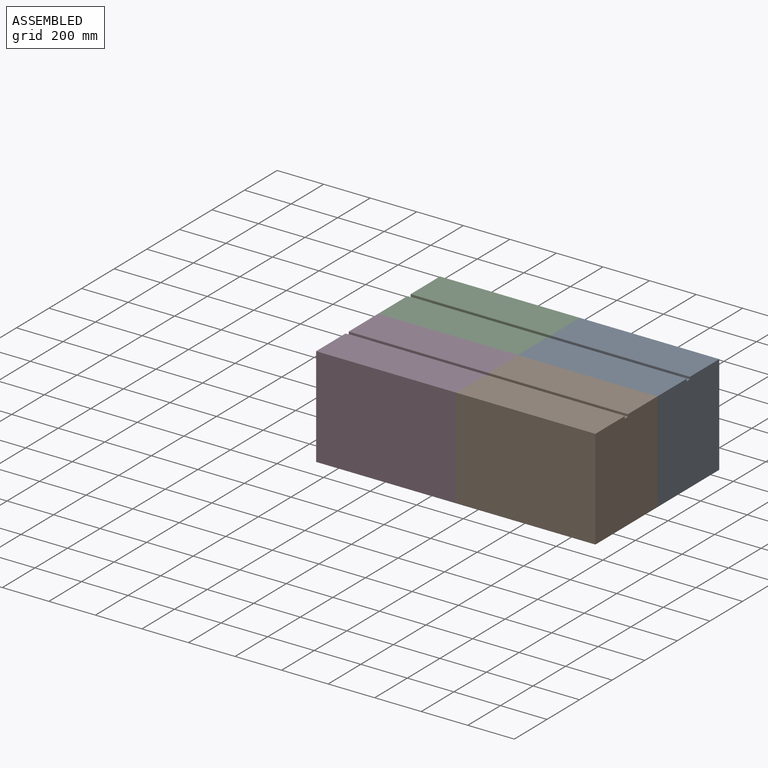
[diagram: assembled view]
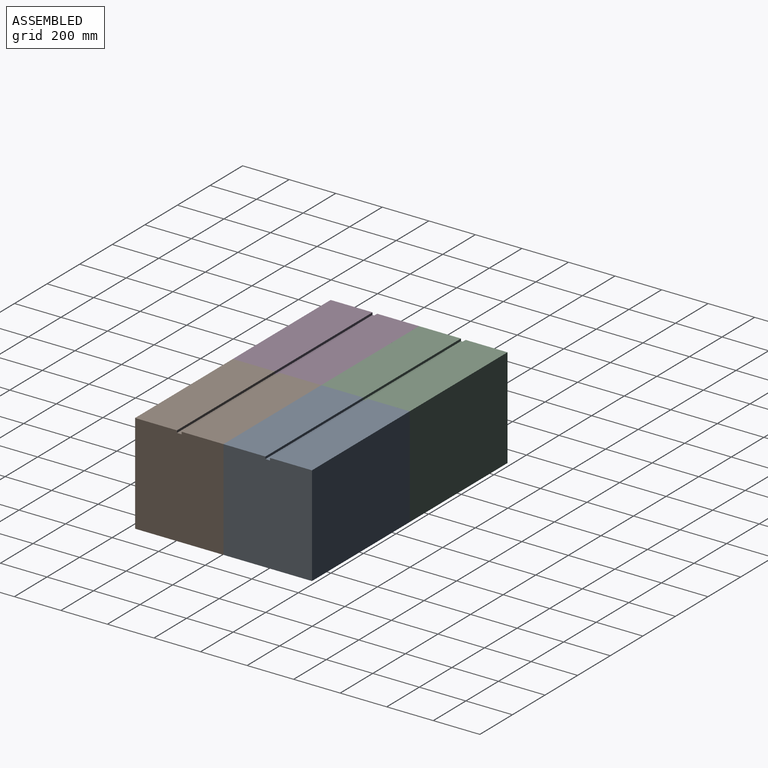
[diagram: assembled view, second angle]
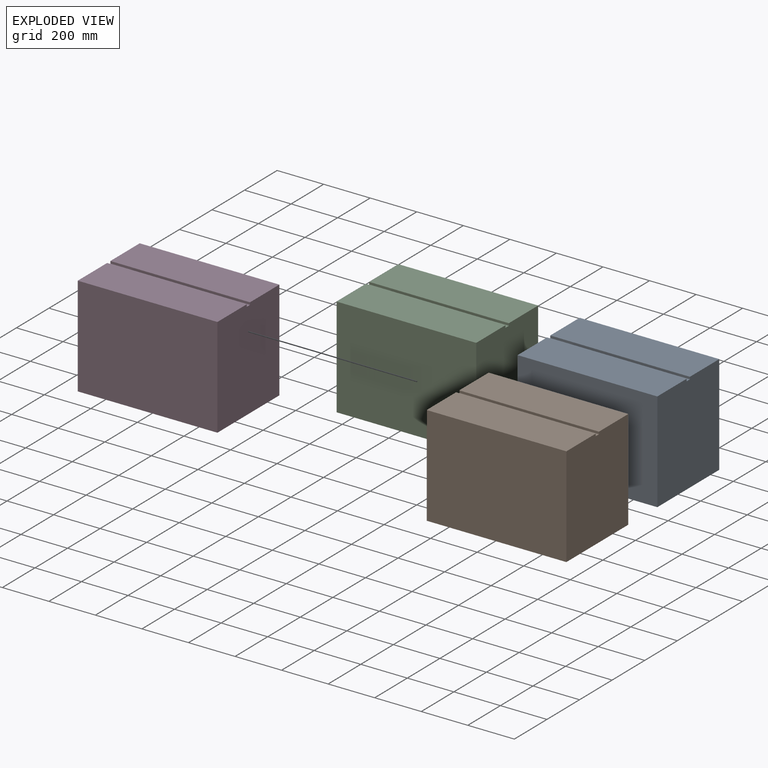
[diagram: exploded view]
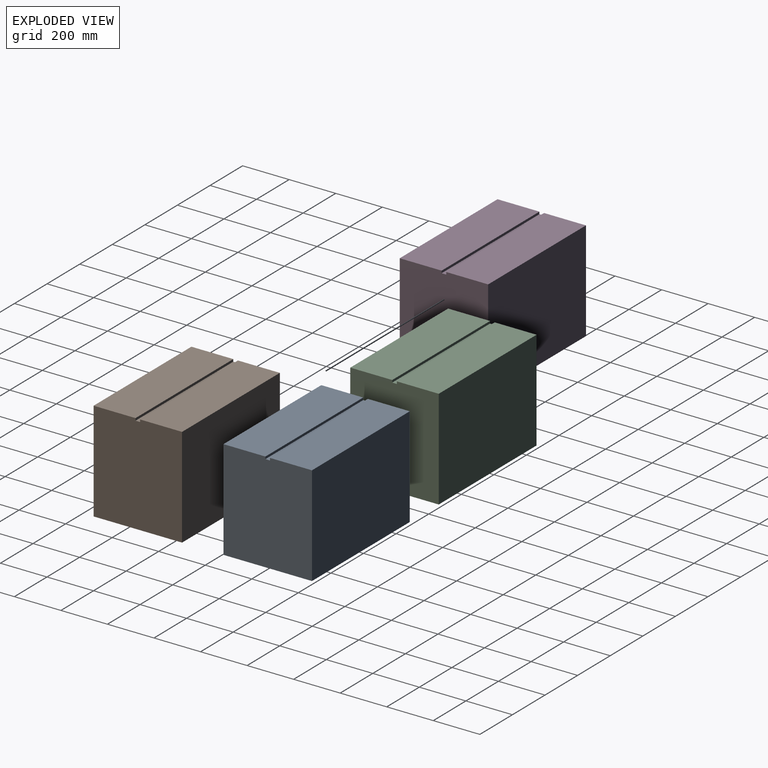
[diagram: exploded view, second angle]
ASSEMBLY  parts=4 mates=3
PART A: 10 faces, bbox 600x380x430 mm
  f0: plane 600x180mm, normal (0,0,1), area 108000mm2, adj f1,f2,f3,f8
  f1: plane 430x380mm, normal (-1,0,0), area 163200mm2, adj f0,f3,f4,f5,f6,f7,f8,f9
  f2: plane 430x380mm, normal (1,0,0), area 163200mm2, adj f0,f3,f4,f5,f6,f7,f8,f9
  f3: plane 600x430mm, normal (0,-1,0), area 258000mm2, adj f0,f1,f2,f4
  f4: plane 600x380mm, normal (0,0,-1), area 228000mm2, adj f1,f2,f3,f5
  f5: plane 600x430mm, normal (0,1,0), area 258000mm2, adj f1,f2,f4,f6
  f6: plane 600x180mm, normal (0,0,1), area 108000mm2, adj f1,f2,f5,f7
  f7: plane 600x10mm, normal (0,-1,0), area 6000mm2, adj f1,f2,f6,f9
  f8: plane 600x10mm, normal (0,1,0), area 6000mm2, adj f0,f1,f2,f9
  f9: plane 600x20mm, normal (0,0,1), area 12000mm2, adj f1,f2,f7,f8
PART B: same geometry as A
PART C: same geometry as A
PART D: same geometry as A
PLACE A t=(732.14,191.77,419.71)mm
PLACE B t=(732.14,-188.23,419.71)mm
PLACE C t=(132.14,191.77,419.71)mm
PLACE D t=(132.14,-188.23,419.71)mm
MATE fastened C.f2 <-> A.f1  axis (1,0,0) through (132.14,31.16,713.27)mm
MATE fastened A.f3 <-> B.f5  axis (0,-1,0) through (732.14,31.16,713.27)mm
MATE fastened B.f1 <-> D.f2  axis (-1,0,0) through (132.14,-348.84,713.27)mm
